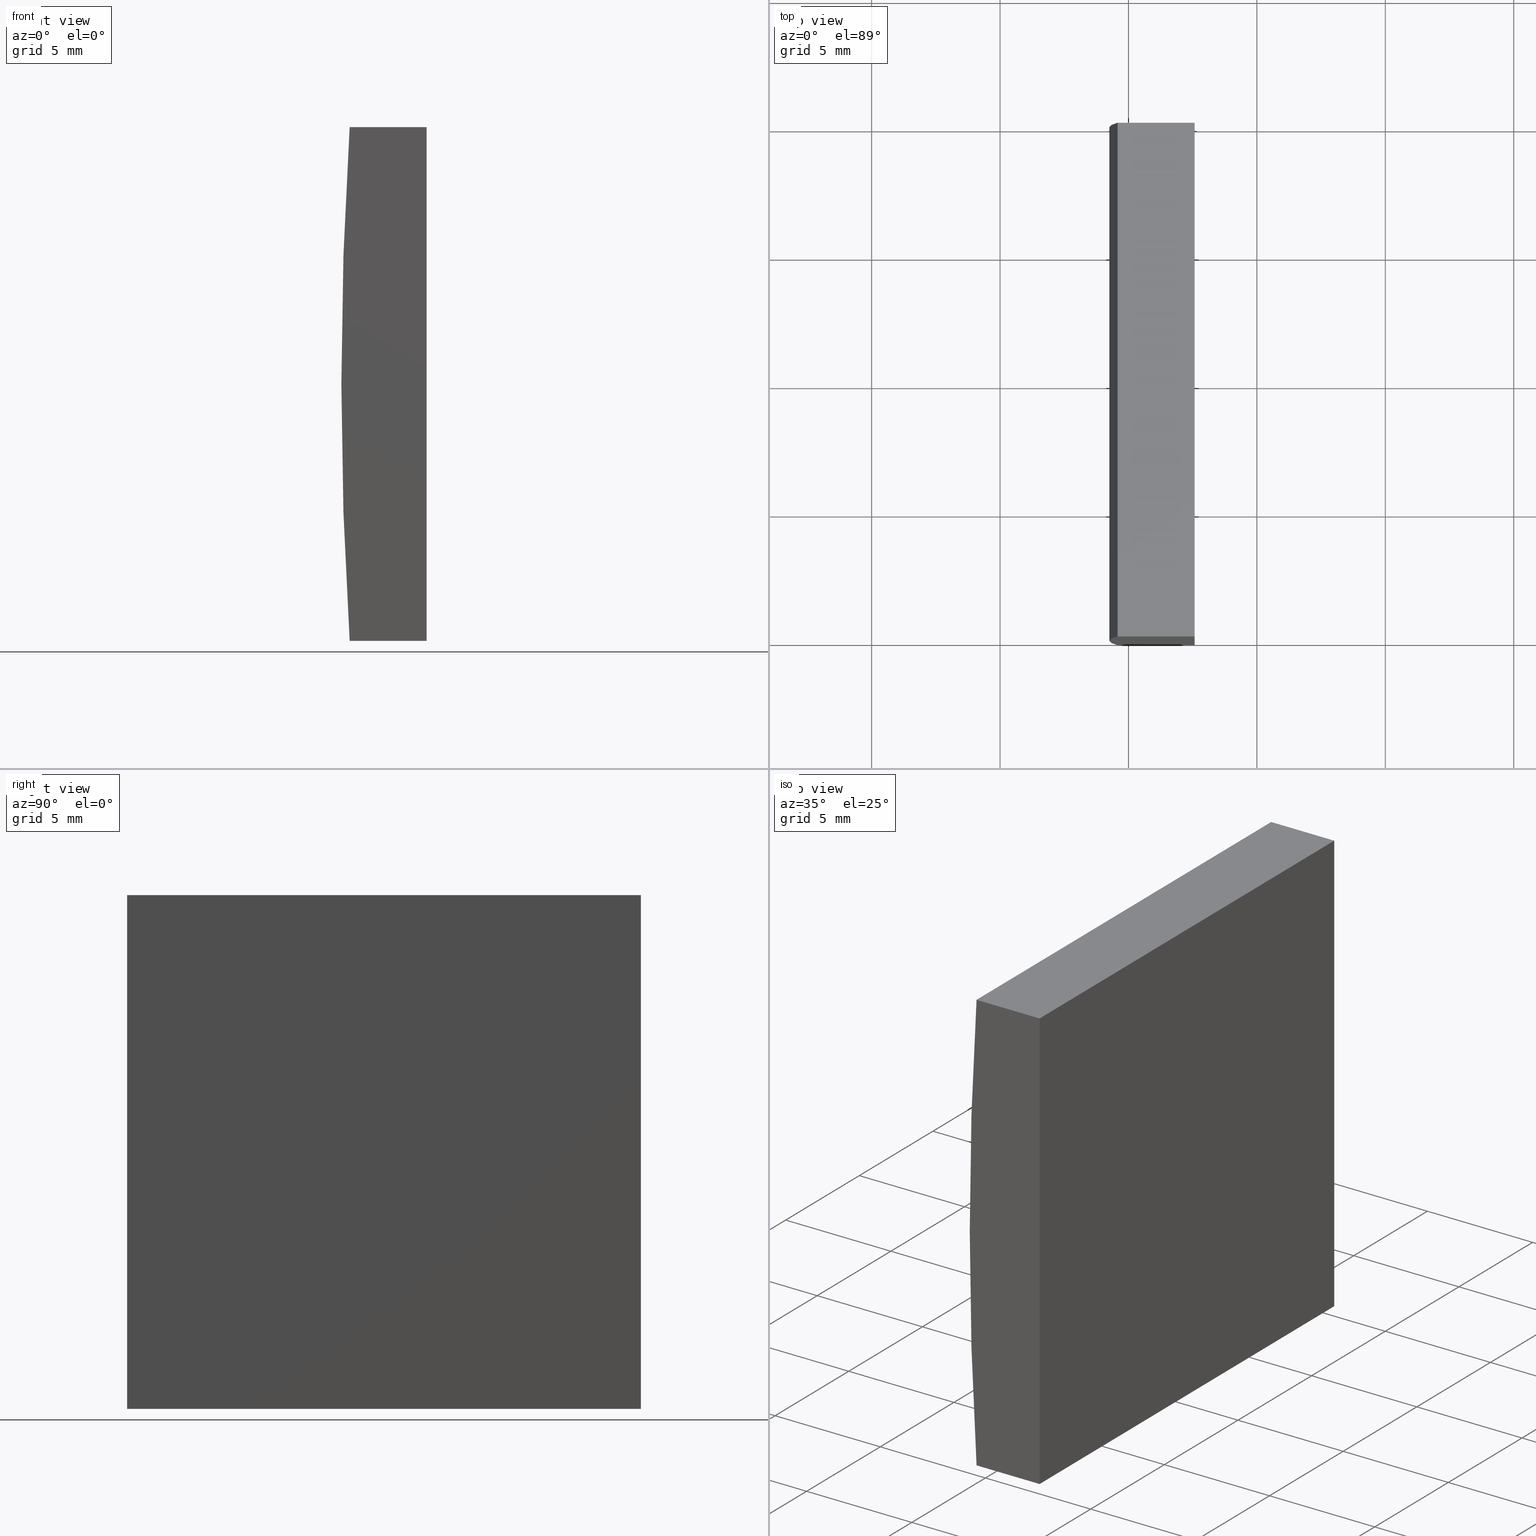
[diagram: canonical four-view strip — front | top / right | iso, engineering-drawing reading convention]
A machine part, canonical four-view strip (front | top / right | iso — engineering-drawing reading convention). The complete STEP part file that produces these views, byte-faithful:
ISO-10303-21;
HEADER;
FILE_DESCRIPTION (( 'STEP AP214' ),
    '1' );
FILE_NAME ('155035.STEP',
    '2019-06-17T07:14:20',
    ( 'user' ),
    ( '΢���й�' ),
    'SwSTEP 2.0',
    'SolidWorks 2016',
    '' );
FILE_SCHEMA (( 'AUTOMOTIVE_DESIGN' ));
ENDSEC;

DATA;
#1 = ADVANCED_FACE ( 'NONE', ( #2 ), #44, .F. ) ;
#2 = FACE_OUTER_BOUND ( 'NONE', #194, .T. ) ;
#3 = EDGE_CURVE ( 'NONE', #150, #80, #131, .T. ) ;
#4 = VECTOR ( 'NONE', #24, 1000.000000000000000 ) ;
#5 = EDGE_LOOP ( 'NONE', ( #72, #32, #28, #95 ) ) ;
#6 = SHAPE_DEFINITION_REPRESENTATION ( #154, #41 ) ;
#7 = DIRECTION ( 'NONE',  ( 0.0000000000000000000, 1.000000000000000000, 0.0000000000000000000 ) ) ;
#8 =( LENGTH_UNIT ( ) NAMED_UNIT ( * ) SI_UNIT ( .MILLI., .METRE. ) );
#9 = CARTESIAN_POINT ( 'NONE',  ( -147.4247956651487600, 20.00000000000000000, -9.999999999999985800 ) ) ;
#10 = ORIENTED_EDGE ( 'NONE', *, *, #12, .T. ) ;
#11 =( NAMED_UNIT ( * ) PLANE_ANGLE_UNIT ( ) SI_UNIT ( $, .RADIAN. ) );
#12 = EDGE_CURVE ( 'NONE', #191, #20, #54, .T. ) ;
#13 = PLANE ( 'NONE',  #70 ) ;
#14 = FACE_OUTER_BOUND ( 'NONE', #5, .T. ) ;
#15 = EDGE_CURVE ( 'NONE', #80, #191, #18, .T. ) ;
#16 = CARTESIAN_POINT ( 'NONE',  ( -150.4220872811994200, 0.0000000000000000000, 10.00000000000000000 ) ) ;
#17 = DIRECTION ( 'NONE',  ( 0.0000000000000000000, 0.0000000000000000000, 1.000000000000000000 ) ) ;
#18 = CIRCLE ( 'NONE', #51, 155.0999999999999900 ) ;
#19 = UNCERTAINTY_MEASURE_WITH_UNIT (LENGTH_MEASURE( 1.000000000000000100E-005 ), #8, 'distance_accuracy_value', 'NONE');
#20 = VERTEX_POINT ( 'NONE', #186 ) ;
#21 = CIRCLE ( 'NONE', #173, 155.0999999999999900 ) ;
#22 = AXIS2_PLACEMENT_3D ( 'NONE', #31, #174, #74 ) ;
#23 = VECTOR ( 'NONE', #84, 1000.000000000000000 ) ;
#24 = DIRECTION ( 'NONE',  ( -1.000000000000000000, -0.0000000000000000000, -4.630109307181893800E-015 ) ) ;
#25 = ORIENTED_EDGE ( 'NONE', *, *, #120, .F. ) ;
#26 = CYLINDRICAL_SURFACE ( 'NONE', #22, 155.0999999999999900 ) ;
#27 = CARTESIAN_POINT ( 'NONE',  ( 4.355204334851265500, 0.0000000000000000000, 4.286263797015675000E-017 ) ) ;
#28 = ORIENTED_EDGE ( 'NONE', *, *, #36, .F. ) ;
#29 =( NAMED_UNIT ( * ) SI_UNIT ( $, .STERADIAN. ) SOLID_ANGLE_UNIT ( ) );
#30 =( NAMED_UNIT ( * ) PLANE_ANGLE_UNIT ( ) SI_UNIT ( $, .RADIAN. ) );
#31 = CARTESIAN_POINT ( 'NONE',  ( 4.355204334851265500, 20.00000000000000000, 4.286263797015675000E-017 ) ) ;
#32 = ORIENTED_EDGE ( 'NONE', *, *, #50, .F. ) ;
#33 = VECTOR ( 'NONE', #159, 1000.000000000000000 ) ;
#34 =( NAMED_UNIT ( * ) SI_UNIT ( $, .STERADIAN. ) SOLID_ANGLE_UNIT ( ) );
#35 = DIRECTION ( 'NONE',  ( 0.0000000000000000000, -0.0000000000000000000, 1.000000000000000000 ) ) ;
#36 = EDGE_CURVE ( 'NONE', #20, #76, #55, .T. ) ;
#37 = AXIS2_PLACEMENT_3D ( 'NONE', #187, #125, #204 ) ;
#38 = ORIENTED_EDGE ( 'NONE', *, *, #36, .T. ) ;
#39 = EDGE_LOOP ( 'NONE', ( #114, #160, #130, #101 ) ) ;
#40 =( GEOMETRIC_REPRESENTATION_CONTEXT ( 3 ) GLOBAL_UNCERTAINTY_ASSIGNED_CONTEXT ( ( #19 ) ) GLOBAL_UNIT_ASSIGNED_CONTEXT ( ( #8, #30, #29 ) ) REPRESENTATION_CONTEXT ( 'NONE', 'WORKASPACE' ) );
#41 = ADVANCED_BREP_SHAPE_REPRESENTATION ( '155035', ( #104, #37 ), #40 ) ;
#42 = MECHANICAL_DESIGN_GEOMETRIC_PRESENTATION_REPRESENTATION (  '', ( #45 ), #92 ) ;
#43 = ORIENTED_EDGE ( 'NONE', *, *, #167, .T. ) ;
#44 = PLANE ( 'NONE',  #184 ) ;
#45 = STYLED_ITEM ( 'NONE', ( #119 ), #104 ) ;
#46 = APPLICATION_PROTOCOL_DEFINITION ( 'draft international standard', 'automotive_design', 1998, #48 ) ;
#47 = CARTESIAN_POINT ( 'NONE',  ( -150.4220872811994200, 0.0000000000000000000, -10.00000000000000000 ) ) ;
#48 = APPLICATION_CONTEXT ( 'automotive_design' ) ;
#49 = COLOUR_RGB ( '',1.000000000000000000, 1.000000000000000000, 1.000000000000000000 ) ;
#50 = EDGE_CURVE ( 'NONE', #76, #80, #59, .T. ) ;
#51 = AXIS2_PLACEMENT_3D ( 'NONE', #82, #81, #115 ) ;
#52 = SURFACE_SIDE_STYLE ('',( #166 ) ) ;
#53 = VECTOR ( 'NONE', #94, 1000.000000000000000 ) ;
#54 = LINE ( 'NONE', #16, #97 ) ;
#55 = LINE ( 'NONE', #165, #53 ) ;
#56 = STYLED_ITEM ( 'NONE', ( #181 ), #41 ) ;
#57 = DIRECTION ( 'NONE',  ( 0.0000000000000000000, 1.000000000000000000, 0.0000000000000000000 ) ) ;
#58 = SURFACE_STYLE_USAGE ( .BOTH. , #62 ) ;
#59 = LINE ( 'NONE', #47, #4 ) ;
#60 = FILL_AREA_STYLE ('',( #135 ) ) ;
#61 = AXIS2_PLACEMENT_3D ( 'NONE', #188, #136, #199 ) ;
#62 = SURFACE_SIDE_STYLE ('',( #105 ) ) ;
#63 = FACE_OUTER_BOUND ( 'NONE', #156, .T. ) ;
#64 = DIRECTION ( 'NONE',  ( 0.0000000000000000000, 1.000000000000000000, 0.0000000000000000000 ) ) ;
#65 = DIRECTION ( 'NONE',  ( -0.0000000000000000000, -1.000000000000000000, -0.0000000000000000000 ) ) ;
#66 = ORIENTED_EDGE ( 'NONE', *, *, #141, .F. ) ;
#67 = ORIENTED_EDGE ( 'NONE', *, *, #126, .F. ) ;
#68 = VECTOR ( 'NONE', #121, 1000.000000000000000 ) ;
#69 = VERTEX_POINT ( 'NONE', #124 ) ;
#70 = AXIS2_PLACEMENT_3D ( 'NONE', #27, #7, #35 ) ;
#71 = CARTESIAN_POINT ( 'NONE',  ( -150.4220872811994200, 0.0000000000000000000, -10.00000000000000000 ) ) ;
#72 = ORIENTED_EDGE ( 'NONE', *, *, #15, .F. ) ;
#73 = FACE_OUTER_BOUND ( 'NONE', #200, .T. ) ;
#74 = DIRECTION ( 'NONE',  ( 0.0000000000000000000, 0.0000000000000000000, -1.000000000000000000 ) ) ;
#75 = FILL_AREA_STYLE ('',( #99 ) ) ;
#76 = VERTEX_POINT ( 'NONE', #79 ) ;
#77 = DIRECTION ( 'NONE',  ( 0.0000000000000000000, 0.0000000000000000000, -1.000000000000000000 ) ) ;
#78 = CARTESIAN_POINT ( 'NONE',  ( -147.4247956651487600, 20.00000000000000000, 10.00000000000000000 ) ) ;
#79 = CARTESIAN_POINT ( 'NONE',  ( -147.4247956651487600, 0.0000000000000000000, -9.999999999999985800 ) ) ;
#80 = VERTEX_POINT ( 'NONE', #71 ) ;
#81 = DIRECTION ( 'NONE',  ( 0.0000000000000000000, 1.000000000000000000, 0.0000000000000000000 ) ) ;
#82 = CARTESIAN_POINT ( 'NONE',  ( 4.355204334851265500, 0.0000000000000000000, 4.286263797015675000E-017 ) ) ;
#83 = ORIENTED_EDGE ( 'NONE', *, *, #126, .T. ) ;
#84 = DIRECTION ( 'NONE',  ( -0.0000000000000000000, -1.000000000000000000, -0.0000000000000000000 ) ) ;
#85 = CARTESIAN_POINT ( 'NONE',  ( -147.4247956651487600, 20.00000000000000000, -9.999999999999985800 ) ) ;
#86 = APPLICATION_PROTOCOL_DEFINITION ( 'draft international standard', 'automotive_design', 1998, #122 ) ;
#87 = PRESENTATION_LAYER_ASSIGNMENT (  '', '', ( #45 ) ) ;
#88 = DIRECTION ( 'NONE',  ( -0.0000000000000000000, -0.0000000000000000000, -1.000000000000000000 ) ) ;
#89 = ORIENTED_EDGE ( 'NONE', *, *, #50, .T. ) ;
#90 = PLANE ( 'NONE',  #168 ) ;
#91 =( GEOMETRIC_REPRESENTATION_CONTEXT ( 3 ) GLOBAL_UNCERTAINTY_ASSIGNED_CONTEXT ( ( #110 ) ) GLOBAL_UNIT_ASSIGNED_CONTEXT ( ( #183, #162, #34 ) ) REPRESENTATION_CONTEXT ( 'NONE', 'WORKASPACE' ) );
#92 =( GEOMETRIC_REPRESENTATION_CONTEXT ( 3 ) GLOBAL_UNCERTAINTY_ASSIGNED_CONTEXT ( ( #149 ) ) GLOBAL_UNIT_ASSIGNED_CONTEXT ( ( #102, #11, #177 ) ) REPRESENTATION_CONTEXT ( 'NONE', 'WORKASPACE' ) );
#93 = CLOSED_SHELL ( 'NONE', ( #129, #1, #178, #171, #132, #108 ) ) ;
#94 = DIRECTION ( 'NONE',  ( -0.0000000000000000000, -0.0000000000000000000, -1.000000000000000000 ) ) ;
#95 = ORIENTED_EDGE ( 'NONE', *, *, #12, .F. ) ;
#96 = AXIS2_PLACEMENT_3D ( 'NONE', #103, #182, #128 ) ;
#97 = VECTOR ( 'NONE', #139, 1000.000000000000000 ) ;
#98 = LINE ( 'NONE', #179, #33 ) ;
#99 = FILL_AREA_STYLE_COLOUR ( '', #49 ) ;
#100 = MECHANICAL_DESIGN_GEOMETRIC_PRESENTATION_REPRESENTATION (  '', ( #56 ), #91 ) ;
#101 = ORIENTED_EDGE ( 'NONE', *, *, #3, .T. ) ;
#102 =( LENGTH_UNIT ( ) NAMED_UNIT ( * ) SI_UNIT ( .MILLI., .METRE. ) );
#103 = CARTESIAN_POINT ( 'NONE',  ( -150.4220872811994200, 20.00000000000000000, -10.00000000000000000 ) ) ;
#104 = MANIFOLD_SOLID_BREP ( '͹̨-����1', #93 ) ;
#105 = SURFACE_STYLE_FILL_AREA ( #75 ) ;
#106 = PRESENTATION_LAYER_ASSIGNMENT (  '', '', ( #56 ) ) ;
#107 = EDGE_CURVE ( 'NONE', #150, #192, #21, .T. ) ;
#108 = ADVANCED_FACE ( 'NONE', ( #14 ), #13, .F. ) ;
#109 = ORIENTED_EDGE ( 'NONE', *, *, #190, .F. ) ;
#110 = UNCERTAINTY_MEASURE_WITH_UNIT (LENGTH_MEASURE( 1.000000000000000100E-005 ), #183, 'distance_accuracy_value', 'NONE');
#111 = ORIENTED_EDGE ( 'NONE', *, *, #120, .T. ) ;
#112 = LINE ( 'NONE', #9, #116 ) ;
#113 = ORIENTED_EDGE ( 'NONE', *, *, #170, .T. ) ;
#114 = ORIENTED_EDGE ( 'NONE', *, *, #15, .T. ) ;
#115 = DIRECTION ( 'NONE',  ( 0.0000000000000000000, 0.0000000000000000000, 1.000000000000000000 ) ) ;
#116 = VECTOR ( 'NONE', #163, 1000.000000000000000 ) ;
#117 = CARTESIAN_POINT ( 'NONE',  ( -150.4220872811994200, 20.00000000000000000, 10.00000000000000000 ) ) ;
#118 = CARTESIAN_POINT ( 'NONE',  ( -150.4220872811994200, 20.00000000000000000, 10.00000000000000000 ) ) ;
#119 = PRESENTATION_STYLE_ASSIGNMENT (( #143 ) ) ;
#120 = EDGE_CURVE ( 'NONE', #69, #20, #169, .T. ) ;
#121 = DIRECTION ( 'NONE',  ( 1.000000000000000000, 0.0000000000000000000, 0.0000000000000000000 ) ) ;
#122 = APPLICATION_CONTEXT ( 'automotive_design' ) ;
#123 = CARTESIAN_POINT ( 'NONE',  ( -150.4220872811994200, 20.00000000000000000, -10.00000000000000000 ) ) ;
#124 = CARTESIAN_POINT ( 'NONE',  ( -147.4247956651487600, 20.00000000000000000, 10.00000000000000000 ) ) ;
#125 = DIRECTION ( 'NONE',  ( 0.0000000000000000000, 0.0000000000000000000, 1.000000000000000000 ) ) ;
#126 = EDGE_CURVE ( 'NONE', #137, #150, #142, .T. ) ;
#127 = CARTESIAN_POINT ( 'NONE',  ( 4.355204334851265500, 20.00000000000000000, 4.286263797015675000E-017 ) ) ;
#128 = DIRECTION ( 'NONE',  ( 1.000000000000000000, 0.0000000000000000000, 4.630109307181893800E-015 ) ) ;
#129 = ADVANCED_FACE ( 'NONE', ( #148 ), #26, .T. ) ;
#130 = ORIENTED_EDGE ( 'NONE', *, *, #107, .F. ) ;
#131 = LINE ( 'NONE', #133, #23 ) ;
#132 = ADVANCED_FACE ( 'NONE', ( #63 ), #90, .T. ) ;
#133 = CARTESIAN_POINT ( 'NONE',  ( -150.4220872811994200, 20.00000000000000000, -10.00000000000000000 ) ) ;
#134 = PLANE ( 'NONE',  #61 ) ;
#135 = FILL_AREA_STYLE_COLOUR ( '', #180 ) ;
#136 = DIRECTION ( 'NONE',  ( -1.000000000000000000, 0.0000000000000000000, 0.0000000000000000000 ) ) ;
#137 = VERTEX_POINT ( 'NONE', #85 ) ;
#138 = PRODUCT_DEFINITION ( 'δ֪', '', #146, #176 ) ;
#139 = DIRECTION ( 'NONE',  ( 1.000000000000000000, 0.0000000000000000000, 0.0000000000000000000 ) ) ;
#140 = DIRECTION ( 'NONE',  ( -1.000000000000000000, 0.0000000000000000000, -0.0000000000000000000 ) ) ;
#141 = EDGE_CURVE ( 'NONE', #192, #69, #189, .T. ) ;
#142 = LINE ( 'NONE', #175, #161 ) ;
#143 = SURFACE_STYLE_USAGE ( .BOTH. , #52 ) ;
#144 = ORIENTED_EDGE ( 'NONE', *, *, #107, .T. ) ;
#145 = VECTOR ( 'NONE', #65, 1000.000000000000000 ) ;
#146 = PRODUCT_DEFINITION_FORMATION_WITH_SPECIFIED_SOURCE ( '�κ�', '', #158, .NOT_KNOWN. ) ;
#147 = ORIENTED_EDGE ( 'NONE', *, *, #190, .T. ) ;
#148 = FACE_OUTER_BOUND ( 'NONE', #39, .T. ) ;
#149 = UNCERTAINTY_MEASURE_WITH_UNIT (LENGTH_MEASURE( 1.000000000000000100E-005 ), #102, 'distance_accuracy_value', 'NONE');
#150 = VERTEX_POINT ( 'NONE', #123 ) ;
#151 = PRODUCT_RELATED_PRODUCT_CATEGORY ( 'part', '', ( #158 ) ) ;
#152 = LINE ( 'NONE', #201, #193 ) ;
#153 = CARTESIAN_POINT ( 'NONE',  ( -150.4220872811994200, 0.0000000000000000000, 10.00000000000000000 ) ) ;
#154 = PRODUCT_DEFINITION_SHAPE ( 'NONE', 'NONE',  #138 ) ;
#155 = PLANE ( 'NONE',  #96 ) ;
#156 = EDGE_LOOP ( 'NONE', ( #144, #197, #113, #83 ) ) ;
#157 = PRODUCT_CONTEXT ( 'NONE', #122, 'mechanical' ) ;
#158 = PRODUCT ( '155035', '155035', '', ( #157 ) ) ;
#159 = DIRECTION ( 'NONE',  ( -0.0000000000000000000, -1.000000000000000000, -0.0000000000000000000 ) ) ;
#160 = ORIENTED_EDGE ( 'NONE', *, *, #167, .F. ) ;
#161 = VECTOR ( 'NONE', #203, 1000.000000000000000 ) ;
#162 =( NAMED_UNIT ( * ) PLANE_ANGLE_UNIT ( ) SI_UNIT ( $, .RADIAN. ) );
#163 = DIRECTION ( 'NONE',  ( -0.0000000000000000000, -1.000000000000000000, -0.0000000000000000000 ) ) ;
#164 = EDGE_LOOP ( 'NONE', ( #38, #109, #196, #111 ) ) ;
#165 = CARTESIAN_POINT ( 'NONE',  ( -147.4247956651487600, 0.0000000000000000000, -9.999999999999985800 ) ) ;
#166 = SURFACE_STYLE_FILL_AREA ( #60 ) ;
#167 = EDGE_CURVE ( 'NONE', #192, #191, #98, .T. ) ;
#168 = AXIS2_PLACEMENT_3D ( 'NONE', #202, #64, #172 ) ;
#169 = LINE ( 'NONE', #78, #145 ) ;
#170 = EDGE_CURVE ( 'NONE', #69, #137, #152, .T. ) ;
#171 = ADVANCED_FACE ( 'NONE', ( #73 ), #155, .F. ) ;
#172 = DIRECTION ( 'NONE',  ( 0.0000000000000000000, -0.0000000000000000000, 1.000000000000000000 ) ) ;
#173 = AXIS2_PLACEMENT_3D ( 'NONE', #127, #57, #17 ) ;
#174 = DIRECTION ( 'NONE',  ( -0.0000000000000000000, -1.000000000000000000, -0.0000000000000000000 ) ) ;
#175 = CARTESIAN_POINT ( 'NONE',  ( -150.4220872811994200, 20.00000000000000000, -10.00000000000000000 ) ) ;
#176 = PRODUCT_DEFINITION_CONTEXT ( 'detailed design', #48, 'design' ) ;
#177 =( NAMED_UNIT ( * ) SI_UNIT ( $, .STERADIAN. ) SOLID_ANGLE_UNIT ( ) );
#178 = ADVANCED_FACE ( 'NONE', ( #198 ), #134, .F. ) ;
#179 = CARTESIAN_POINT ( 'NONE',  ( -150.4220872811994200, 20.00000000000000000, 10.00000000000000000 ) ) ;
#180 = COLOUR_RGB ( '',1.000000000000000000, 1.000000000000000000, 1.000000000000000000 ) ;
#181 = PRESENTATION_STYLE_ASSIGNMENT (( #58 ) ) ;
#182 = DIRECTION ( 'NONE',  ( -4.630109307181893800E-015, 0.0000000000000000000, 1.000000000000000000 ) ) ;
#183 =( LENGTH_UNIT ( ) NAMED_UNIT ( * ) SI_UNIT ( .MILLI., .METRE. ) );
#184 = AXIS2_PLACEMENT_3D ( 'NONE', #118, #77, #140 ) ;
#185 = ORIENTED_EDGE ( 'NONE', *, *, #3, .F. ) ;
#186 = CARTESIAN_POINT ( 'NONE',  ( -147.4247956651487600, 0.0000000000000000000, 10.00000000000000000 ) ) ;
#187 = CARTESIAN_POINT ( 'NONE',  ( 0.0000000000000000000, 0.0000000000000000000, 0.0000000000000000000 ) ) ;
#188 = CARTESIAN_POINT ( 'NONE',  ( -147.4247956651487600, 20.00000000000000000, -9.999999999999985800 ) ) ;
#189 = LINE ( 'NONE', #195, #68 ) ;
#190 = EDGE_CURVE ( 'NONE', #137, #76, #112, .T. ) ;
#191 = VERTEX_POINT ( 'NONE', #153 ) ;
#192 = VERTEX_POINT ( 'NONE', #117 ) ;
#193 = VECTOR ( 'NONE', #88, 1000.000000000000000 ) ;
#194 = EDGE_LOOP ( 'NONE', ( #10, #25, #66, #43 ) ) ;
#195 = CARTESIAN_POINT ( 'NONE',  ( -150.4220872811994200, 20.00000000000000000, 10.00000000000000000 ) ) ;
#196 = ORIENTED_EDGE ( 'NONE', *, *, #170, .F. ) ;
#197 = ORIENTED_EDGE ( 'NONE', *, *, #141, .T. ) ;
#198 = FACE_OUTER_BOUND ( 'NONE', #164, .T. ) ;
#199 = DIRECTION ( 'NONE',  ( 0.0000000000000000000, 0.0000000000000000000, 1.000000000000000000 ) ) ;
#200 = EDGE_LOOP ( 'NONE', ( #89, #185, #67, #147 ) ) ;
#201 = CARTESIAN_POINT ( 'NONE',  ( -147.4247956651487600, 20.00000000000000000, -9.999999999999985800 ) ) ;
#202 = CARTESIAN_POINT ( 'NONE',  ( 4.355204334851265500, 20.00000000000000000, 4.286263797015675000E-017 ) ) ;
#203 = DIRECTION ( 'NONE',  ( -1.000000000000000000, -0.0000000000000000000, -4.630109307181893800E-015 ) ) ;
#204 = DIRECTION ( 'NONE',  ( 1.000000000000000000, 0.0000000000000000000, 0.0000000000000000000 ) ) ;
ENDSEC;
END-ISO-10303-21;
